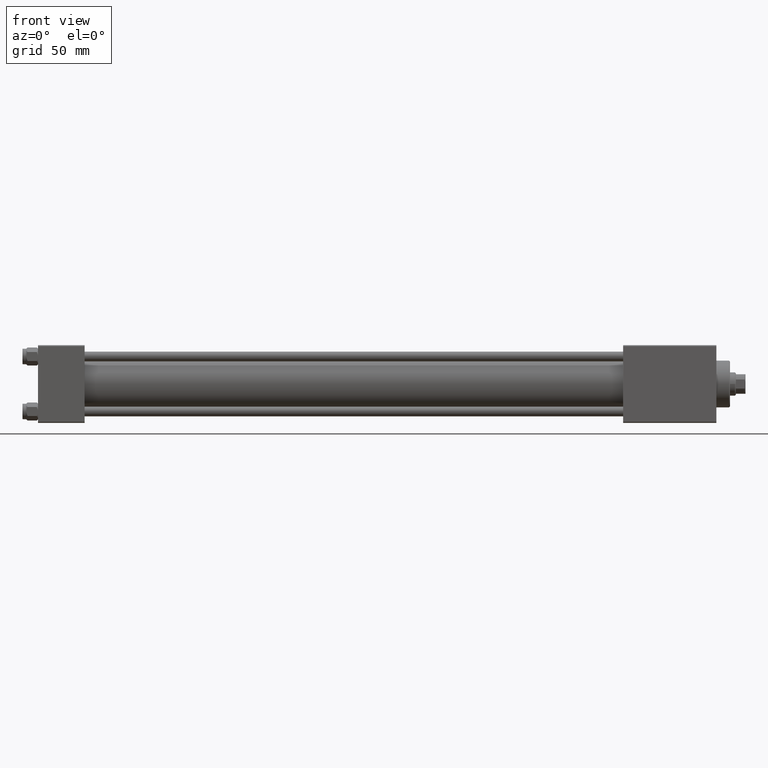
[diagram: clean part render]
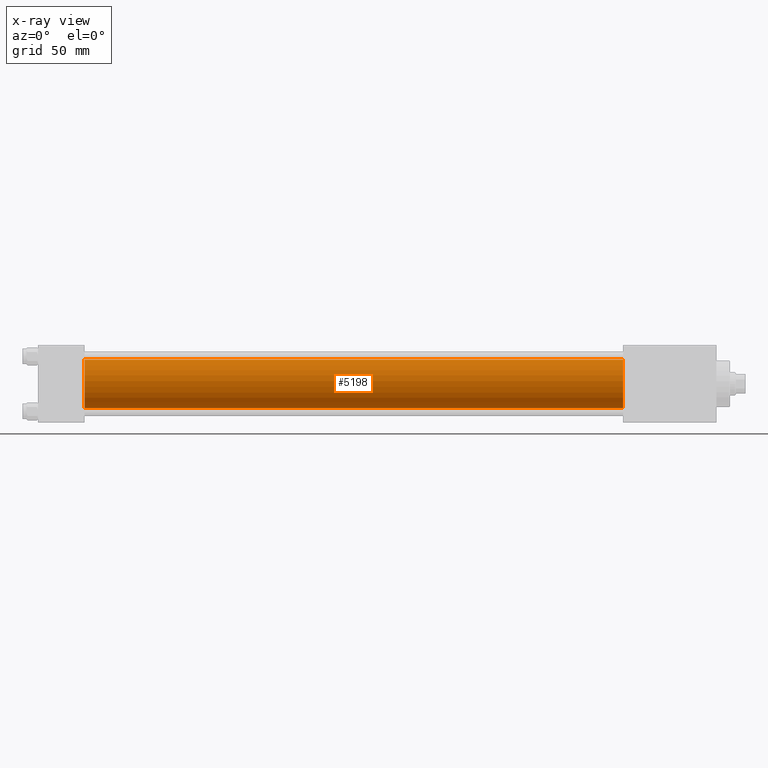
[diagram: x-ray — body ghosted, one internal face saturated and labeled with its STEP entity id]
A machine part, front view, then the same camera in x-ray: the body is ghosted and one INTERNAL B-rep face — a face not visible from any outside direction — is saturated and labeled: STEP entity #5198.
In plain terms, the highlighted cylindrical surface (edge-blend (fillet) strip) has radius 12.5 mm, axis along (-1, -0, -0).
Its self-contained STEP definition (entity closure, byte-faithful):
#192 = EDGE_CURVE ( 'NONE', #9028, #47295, #45491, .T. ) ;
#2468 = ORIENTED_EDGE ( 'NONE', *, *, #7985, .F. ) ;
#2550 = CARTESIAN_POINT ( 'NONE',  ( 301.0000000000000568, -2.602085213965210642E-15, 12.49999999999999645 ) ) ;
#5198 = ADVANCED_FACE ( 'NONE', ( #26109 ), #6852, .F. ) ;
#6852 = CYLINDRICAL_SURFACE ( 'NONE', #22851, 12.49999999999999645 ) ;
#7985 = EDGE_CURVE ( 'NONE', #46039, #47295, #41544, .T. ) ;
#8327 = EDGE_CURVE ( 'NONE', #25601, #9028, #22122, .T. ) ;
#9028 = VERTEX_POINT ( 'NONE', #21571 ) ;
#9107 = EDGE_CURVE ( 'NONE', #25601, #46039, #22073, .T. ) ;
#13410 = DIRECTION ( 'NONE',  ( -1.000000000000000000, -0.000000000000000000, -0.000000000000000000 ) ) ;
#14716 = CARTESIAN_POINT ( 'NONE',  ( 301.0000000000000568, -2.602085213965210642E-15, 0.000000000000000000 ) ) ;
#19398 = CARTESIAN_POINT ( 'NONE',  ( 301.0000000000000568, -2.602085213965210642E-15, 12.49999999999999645 ) ) ;
#19970 = CARTESIAN_POINT ( 'NONE',  ( 24.00000000000000000, -1.071276715031019515E-15, -12.49999999999999645 ) ) ;
#20561 = ORIENTED_EDGE ( 'NONE', *, *, #9107, .F. ) ;
#20869 = CARTESIAN_POINT ( 'NONE',  ( 301.0000000000000568, -2.602085213965210642E-15, 0.000000000000000000 ) ) ;
#21571 = CARTESIAN_POINT ( 'NONE',  ( 301.0000000000000568, -1.071276715031019515E-15, -12.49999999999999645 ) ) ;
#22063 = DIRECTION ( 'NONE',  ( -1.000000000000000000, -0.000000000000000000, -0.000000000000000000 ) ) ;
#22073 = LINE ( 'NONE', #2550, #30154 ) ;
#22122 = CIRCLE ( 'NONE', #26168, 12.49999999999999645 ) ;
#22851 = AXIS2_PLACEMENT_3D ( 'NONE', #14716, #22063, #44627 ) ;
#25601 = VERTEX_POINT ( 'NONE', #19398 ) ;
#26109 = FACE_OUTER_BOUND ( 'NONE', #27566, .T. ) ;
#26168 = AXIS2_PLACEMENT_3D ( 'NONE', #20869, #47981, #31761 ) ;
#27068 = ORIENTED_EDGE ( 'NONE', *, *, #8327, .T. ) ;
#27566 = EDGE_LOOP ( 'NONE', ( #27068, #30823, #2468, #20561 ) ) ;
#29022 = DIRECTION ( 'NONE',  ( 0.000000000000000000, 0.000000000000000000, -1.000000000000000000 ) ) ;
#30154 = VECTOR ( 'NONE', #37532, 1000.000000000000000 ) ;
#30823 = ORIENTED_EDGE ( 'NONE', *, *, #192, .T. ) ;
#31761 = DIRECTION ( 'NONE',  ( 0.000000000000000000, 0.000000000000000000, -1.000000000000000000 ) ) ;
#32823 = DIRECTION ( 'NONE',  ( 1.000000000000000000, 0.000000000000000000, 0.000000000000000000 ) ) ;
#33195 = VECTOR ( 'NONE', #13410, 1000.000000000000000 ) ;
#33273 = CARTESIAN_POINT ( 'NONE',  ( 24.00000000000000000, -2.602085213965210642E-15, 12.49999999999999645 ) ) ;
#37532 = DIRECTION ( 'NONE',  ( -1.000000000000000000, -0.000000000000000000, -0.000000000000000000 ) ) ;
#37896 = CARTESIAN_POINT ( 'NONE',  ( 301.0000000000000568, -1.071276715031019515E-15, -12.49999999999999645 ) ) ;
#41544 = CIRCLE ( 'NONE', #47922, 12.49999999999999645 ) ;
#44627 = DIRECTION ( 'NONE',  ( 0.000000000000000000, 0.000000000000000000, 1.000000000000000000 ) ) ;
#45491 = LINE ( 'NONE', #37896, #33195 ) ;
#46039 = VERTEX_POINT ( 'NONE', #33273 ) ;
#47295 = VERTEX_POINT ( 'NONE', #19970 ) ;
#47531 = CARTESIAN_POINT ( 'NONE',  ( 24.00000000000000000, -2.602085213965210642E-15, 0.000000000000000000 ) ) ;
#47922 = AXIS2_PLACEMENT_3D ( 'NONE', #47531, #32823, #29022 ) ;
#47981 = DIRECTION ( 'NONE',  ( 1.000000000000000000, 0.000000000000000000, 0.000000000000000000 ) ) ;